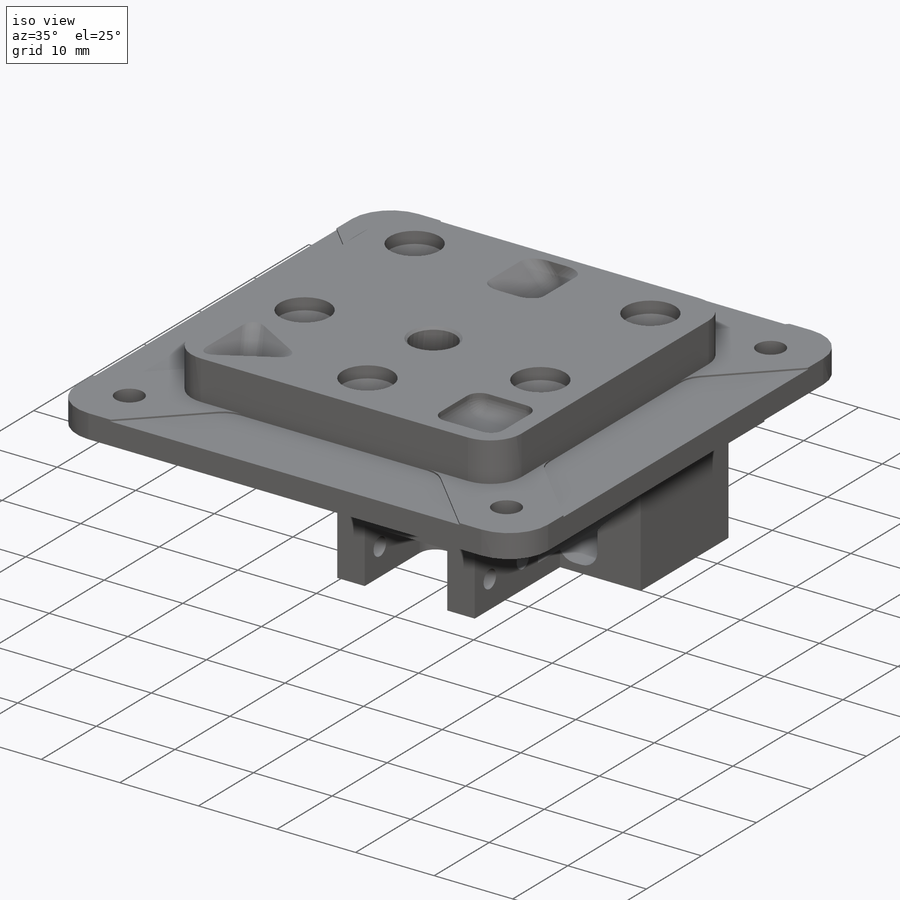
[diagram: iso view]
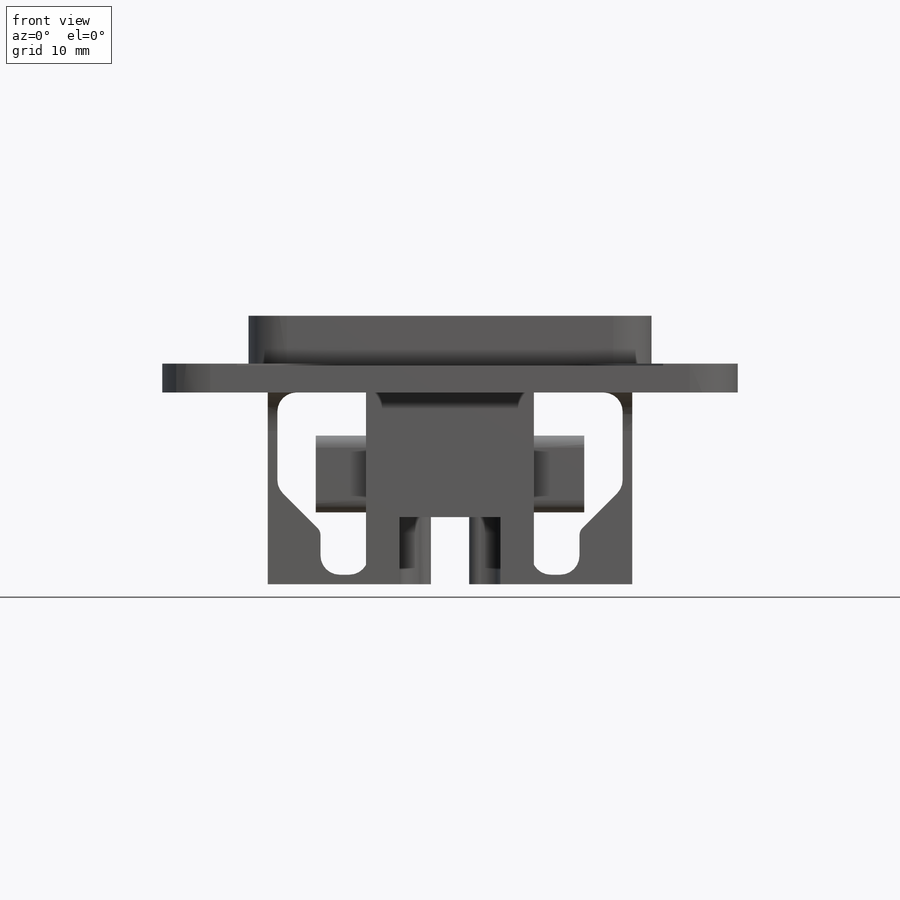
[diagram: front view]
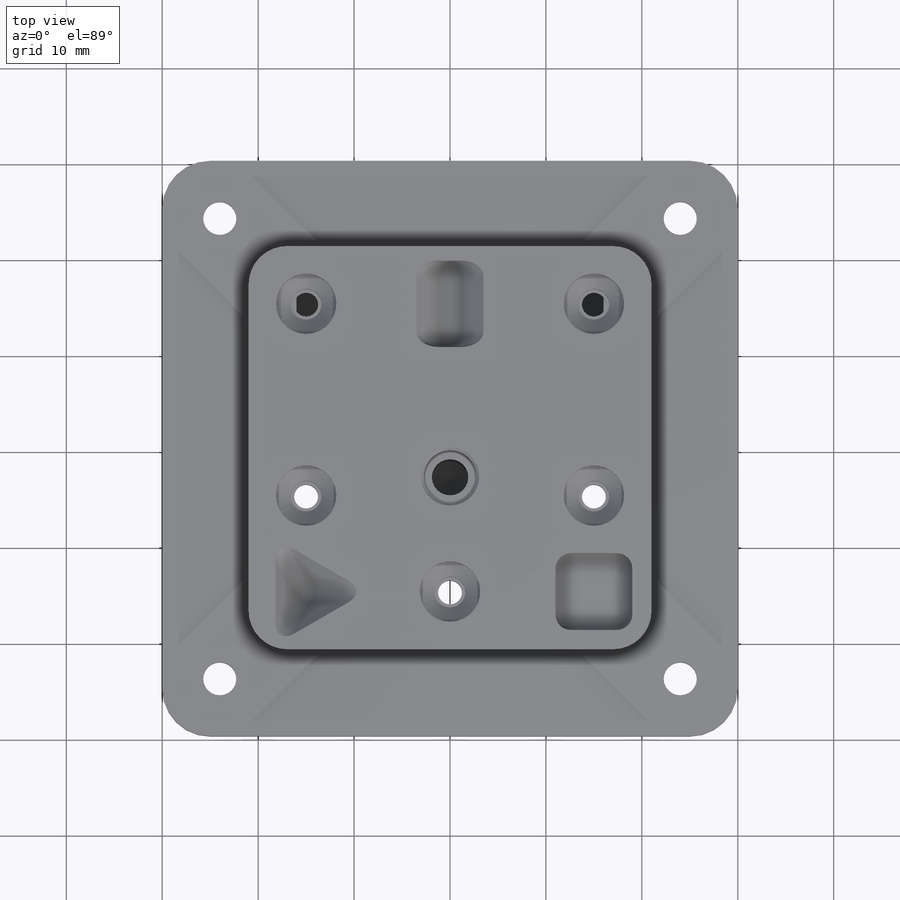
[diagram: top view]
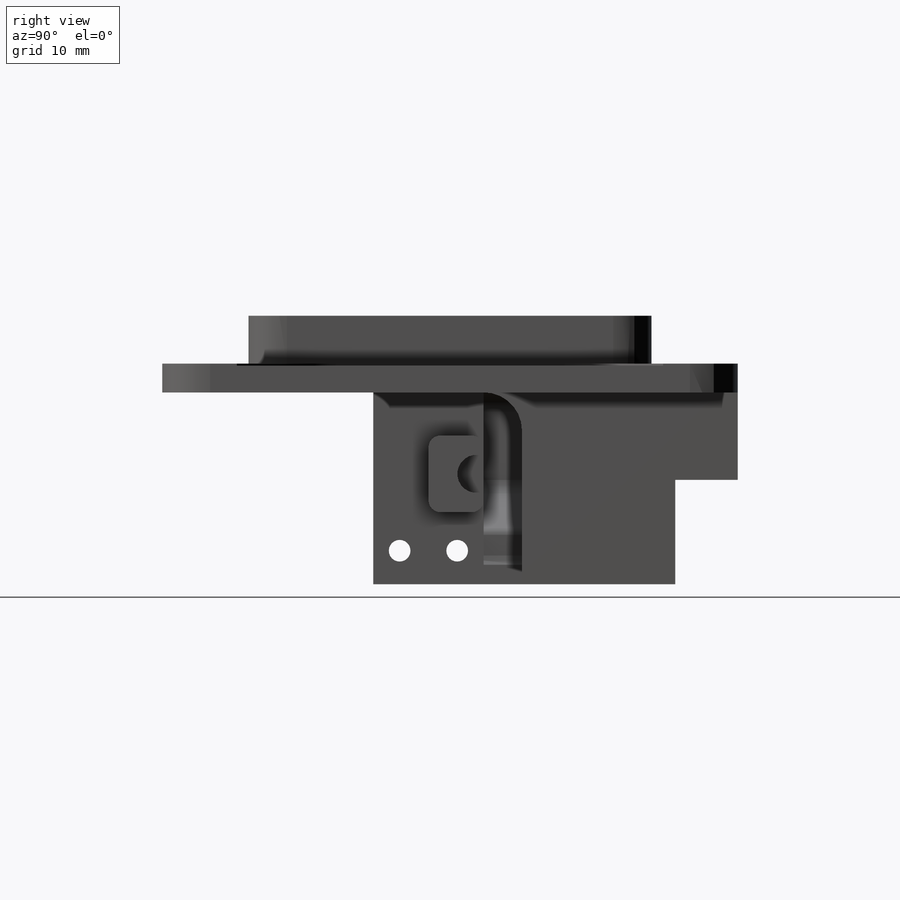
[diagram: right view]
SOLIDWORKS PART (.sldprt)
format: sldprt  version: not decoded by parser v0  size: 7,747,584 bytes
history: native  units: mm
features: sketch x39, cut_extrude x16, thread x16, fillet x8, hole x7, extrude x6, plane x5, delete_body x2, material x1, mirror x1, boolean_combine x1 (+12 scaffold rows collapsed; 1 parser-record rows omitted)
feature tree (115):
  scaffold x12  (default folders/planes/origin — collapsed)
  material  "Ti-6Al-4VSolution treated and aged (SS)"
  parser-record x1  (decoder bookkeeping rows leaked as tree rows — omitted from the tree; the rows remain in map.json)
  sketch  "Sketch6"  dims[D1=60.0mm]
  extrude  "plate"  Depth=8mm
  sketch  "Sketch7"  dims[D1=9.0mm D2=0.0mm]
  cut_extrude  "top hat"  Depth=5mm
  sketch  "Sketch8"  dims[D1=30.0mm D2=12.0mm]
  sketch  "3DSketch1"  dims[D1=~4.499261mm]
  plane  "cube"
  plane  "Plane2"
  sketch  "Sketch13"  dims[D1=48.0mm]
  hole  "#8-32 Tapped Hole1"  Diameter=3.4544mm Depth=3mm
  sketch  "3DSketch3"
  sketch  "Sketch16"  dims[hole-wizard template sketch: 60 standard entries collapsed; hole parameters kept: c18.Thru Tap Drill Depth=3.0mm]
  thread  "Hole Thread17"  Diameter=4.1656mm  [1 undecoded]
  thread  "Hole Thread18"  Diameter=4.1656mm  [1 undecoded]
  thread  "Hole Thread19"  Diameter=4.1656mm  [1 undecoded]
  thread  "Hole Thread20"  Diameter=4.1656mm  [1 undecoded]
  fillet  "Fillet2"  Radius=5mm
  fillet  "Fillet3"  Radius=4mm
  sketch  "Sketch15"  dims[c1.D3=3.175mm c1.D1=~20.922963mm c2.D1=45.0deg c2.D2=5.5mm]
  cut_extrude  "Extrude8"  Depth=0.2mm
  plane  "post z center"
  plane  "Plane5"  Offset=11mm
  sketch  "Sketch24"  dims[c1.D2=3.175mm c1.D9=~4.44528mm c1.D4=~6.524618mm c1.D13=6.35mm c1.D5=1.0mm c2.D9=3.175mm c2.D5=~2.984084mm c2.D1=23.0mm c2.D2=2.0mm c2.D3=24.5mm c3.D1=5.0mm c3.D3=6.0mm c3.D4=1.4125mm c3.D5=~8.55343mm c4.D5=10.0deg c4.D6=1.5mm c4.D3=1.0mm c4.D4=2.0mm c4.D7=15.0mm c4.D8=12.0mm c4.D9=~18.034929mm c4.D10=21.236mm c4.D11=1.0mm c4.D12=3.0mm c5.D10=27.575mm c5.D12=22.0mm c5.D13=15.0mm c5.D7=10.0mm c5.D3=1.75mm c5.D4=~9.383553mm c6.D13=13.0mm c6.D9=0.75mm c6.D2=25.0mm c6.D3=8.0mm c6.D4=15.0mm c6.D5=0.5mm c6.D6=6.0mm c6.D7=0.89mm c7.D9=3.2mm c7.D10=1.0mm c7.D11=18.663mm c7.D2=5.5mm c7.D3=6.35mm c8.D3=45.0deg c9.D3=1.0mm c9.D6=2.0mm c9.D7=1.0mm c9.D10=3.3mm c9.D5=3.0mm c10.D3=~17.946021mm c11.D3=15.0deg c11.D5=2.5mm c11.D6=5.0mm c11.D13=~0.872344mm c12.D6=6.0mm c12.D14=~2.428125mm c12.D13=0.75mm c12.D3=9.0mm c12.D5=19.25mm c13.D6=4.5mm c13.D7=0.5mm c13.D8=2.0mm c13.D2=20.0mm c13.D4=13.0mm c14.D8=0.5mm c14.D9=0.75mm c14.D3=10.75mm]
  extrude  "Boss-Extrude1"  Depth=16mm
  sketch  "Sketch25"  dims[D2=~2.785838mm D1=10.0mm]
  cut_extrude  "Cut-Extrude1"  [1 undecoded]
  sketch  "Sketch26"  dims[c1.D1=2.0mm c1.D6=2.0mm c2.D1=~5.498103mm c2.D2=4.0mm c2.D3=0.75mm c2.D4=~3.907295mm c3.D4=45.0deg c3.D5=14.0mm c3.D6=5.0mm c3.D7=5.0mm c3.D8=1.0mm]
  cut_extrude  "Cut-Extrude3"  [1 undecoded]
  fillet  "Fillet4"  Radius=1mm
  sketch  "Sketch28"  dims[D1=0.0mm]
  extrude  "Boss-Extrude2"  [1 undecoded]
  hole  "#4-40 Tapped Hole2"  Diameter=2.2606mm Depth=7.595mm
  sketch  "Sketch36"  dims[c1.D2=6.0mm c1.D1=3.5mm c1.D3=0.0mm c1.D4=10.0mm c2.D1=4.0mm]
  sketch  "Sketch35"  dims[hole-wizard template sketch: 47 standard entries collapsed; hole parameters kept: c15.Tap Drill Depth=7.595mm c15.D3=~14.816244mm c15.Drill Angle=118.0deg]
  thread  "Hole Thread6"  Diameter=5.69mm  [1 undecoded]
  thread  "Hole Thread7"  Diameter=5.69mm  [1 undecoded]
  sketch  "Sketch44"  dims[c1.D2=1.25mm c1.D5=4.0mm c2.D2=1.25mm c2.D1=4.0mm c2.D3=5.0mm c2.D4=9.0mm c3.D1=8.0mm c3.D4=4.0mm]
  cut_extrude  "Cut-Extrude7"  Depth=2.25mm
  sketch  "Sketch39"  dims[D1=2.0mm]
  cut_extrude  "Cut-Extrude4"  [1 undecoded]
  sketch  "Sketch45"  dims[D1=0.0mm]
  cut_extrude  "Cut-Extrude8"  Depth=5mm
  sketch  "Sketch38"  dims[D1=0.0mm]
  extrude  "Boss-Extrude3"  [1 undecoded]
  hole  "#4-40 Tapped Hole1"  Diameter=2.2606mm Depth=7.595mm
  sketch  "Sketch47"  dims[c1.D1=8.0mm c1.D2=8.0mm c2.D1=8.0mm c2.D2=3.0mm c2.D3=3.5mm c2.D4=2.75mm c2.D5=6.0mm]
  sketch  "Sketch46"  dims[hole-wizard template sketch: 47 standard entries collapsed; hole parameters kept: c15.Tap Drill Depth=7.595mm c15.D3=~14.816244mm c15.Drill Angle=118.0deg]
  thread  "Hole Thread8"  Diameter=5.69mm  [1 undecoded]
  thread  "Hole Thread9"  Diameter=5.69mm  [1 undecoded]
  mirror  "Mirror11"
  boolean_combine  "Combine1"
  hole  "#10-24 Tapped Hole1"  [1 undecoded]
  sketch  "3DSketch2"
  thread  "Hole Thread1"  Diameter=17.7mm  [1 undecoded]
  sketch  "Sketch12"  dims[hole-wizard template sketch: 40 standard entries collapsed; hole parameters kept: c13.Tap Drill Depth=15.878mm c13.Near C'Sink Dia.=6.096mm c13.D4=~33.297463mm c13.Near C'Sink Angle=90.0deg c14.D5=~14.816244mm c14.Drill Angle=118.0deg]
  sketch  "Sketch9"
  cut_extrude  "pyr"  [1 undecoded]
  sketch  "Sketch10"  dims[D1=8.0mm]
  cut_extrude  "Extrude6"  Depth=2.175mm
  sketch  "Sketch11"  dims[D1=6.35mm D2=1.0mm]
  cut_extrude  "Extrude7"  Depth=9mm
  fillet  "Fillet1"  Radius=1.5875mm
  sketch  "Sketch62"  dims[c1.D1=3.0mm c1.D2=2.0mm c1.D3=4.0mm c2.D1=3.0mm c2.D3=3.5mm]
  cut_extrude  "Cut-Extrude13"  Depth=7mm
  fillet  "Fillet7"  Radius=2mm
  fillet  "Fillet8"  Radius=1mm
  sketch  "Sketch48"  dims[D1=1.5mm]
  cut_extrude  "Cut-Extrude9"  [1 undecoded]
  sketch  "Sketch49"  dims[D1=3.0mm D2=3.0mm D3=2.0mm D4=2.0mm D5=10.0mm]
  cut_extrude  "Cut-Extrude10"  [1 undecoded]
  sketch  "Sketch50"  dims[D1=0.0mm]
  extrude  "Boss-Extrude4"  Depth=6mm
  sketch  "Sketch52"  dims[D1=12.0mm]
  extrude  "Boss-Extrude5"  Depth=10mm
  fillet  "Fillet5"  Radius=4mm
  fillet  "Fillet6"  Radius=4mm
  hole  "M3x0.5 Tapped Hole1"  [1 undecoded]
  sketch  "Sketch54"  dims[D1=16.0mm D2=5.0mm D3=7.0mm D4=9.0mm]
  thread  "Hole Thread10"  Diameter=3mm  [1 undecoded]
  thread  "Hole Thread11"  Diameter=3mm  [1 undecoded]
  sketch  "Sketch53"  dims[hole-wizard template sketch: 60 standard entries collapsed; hole parameters kept: c18.Thru Tap Drill Depth=10.0mm]
  sketch  "Sketch55"  dims[D1=2.515mm]
  cut_extrude  "Cut-Extrude11"  [1 undecoded]
  sketch  "Sketch56"
  cut_extrude  "Cut-Extrude12"  [1 undecoded]
  plane  "Plane6"
  hole  "CSK for M3 Flat Head Machine Screw1"  Diameter=3.2mm Depth=4.999mm
  sketch  "Sketch58"  dims[c1.D1=6.0mm c1.D2=6.0mm c1.D3=6.0mm c1.D4=6.0mm c2.D1=6.0mm c2.D2=10.0mm]
  sketch  "Sketch57"  dims[hole-wizard template sketch: 31 standard entries collapsed; hole parameters kept: c10.Hole Dia.=3.2mm c10.Hole Depth=4.999mm c10.C'Sink Dia.=6.3mm c10.D4=~17.960512mm c10.C'Sink Angle=90.0deg c10.D5=~14.816244mm c10.Drill Angle=118.0deg c10.Head Clearance=1.5mm]
  hole  "M3x0.5 Tapped Hole2"  Diameter=2.5mm Depth=3mm
  sketch  "Sketch60"
  sketch  "Sketch61"  dims[hole-wizard template sketch: 60 standard entries collapsed; hole parameters kept: c18.Thru Tap Drill Depth=3.0mm]
  thread  "Hole Thread12"  Diameter=0mm  [1 undecoded]
  thread  "Hole Thread13"  Diameter=0mm  [1 undecoded]
  thread  "Hole Thread14"  Diameter=0mm  [1 undecoded]
  thread  "Hole Thread15"  Diameter=0mm  [1 undecoded]
  thread  "Hole Thread16"  Diameter=0mm  [1 undecoded]
  delete_body  "Body-Delete1"
  delete_body  "Body-Delete2"
  sketch  "Sketch63"  dims[D1=5.5mm]
  cut_extrude  "Cut-Extrude14"  [1 undecoded]
decode coverage: 74 of 96 modeling features carry decoded parameters
note: ~ marks probable driven/reference dimensions
note: 29 parameter values undecoded
summary: no parameter record found for 13 features; Diameter pulled from absorbed wizard sketch
note: suppression state not decoded; provenance and decode notes live in map.json
